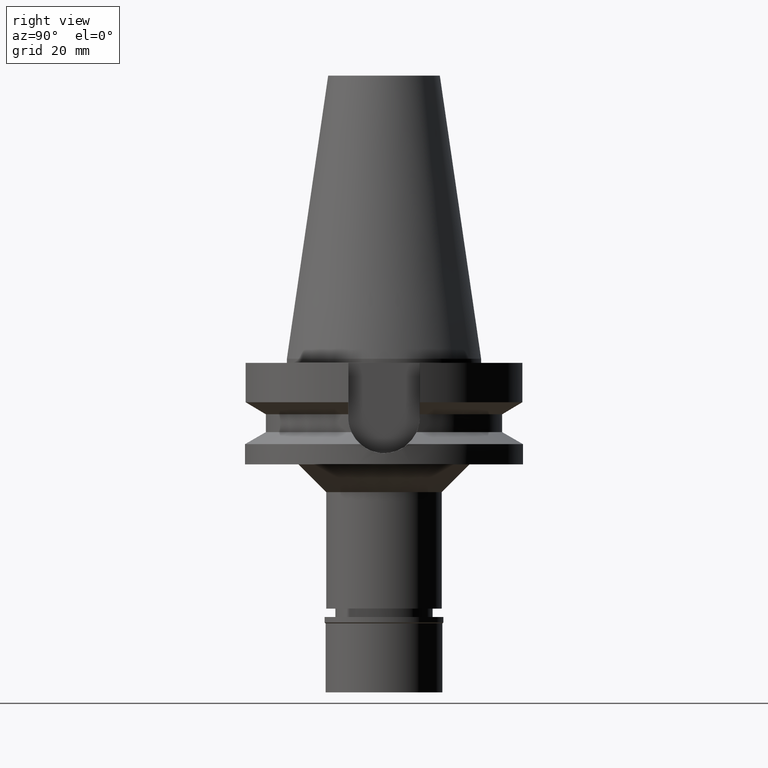
[diagram: clean part render]
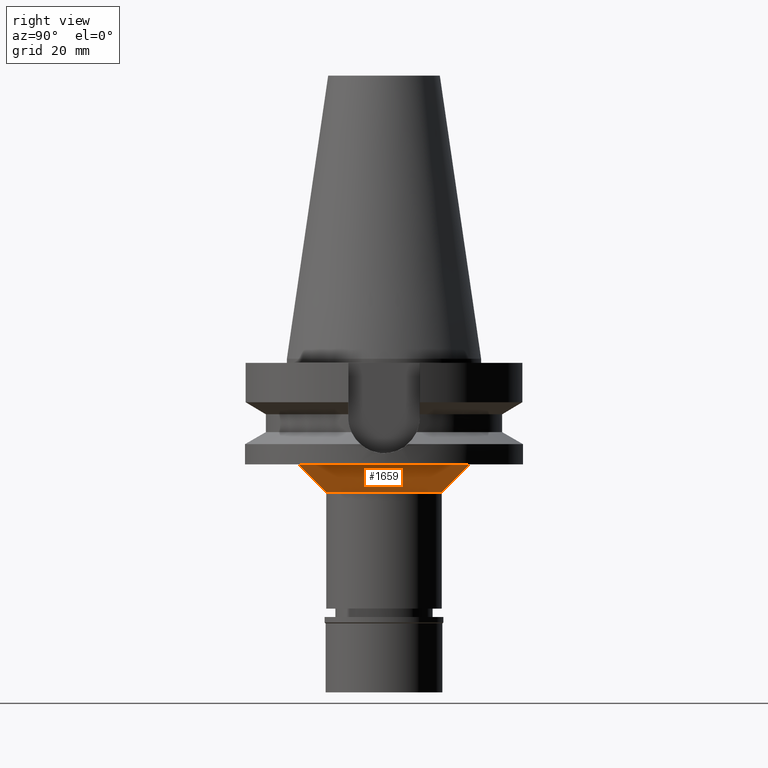
[diagram: same view with one face highlighted and labeled with its STEP entity id]
A machine part, right view. The second image highlights one B-rep face of the part: STEP entity #1659.
In plain terms, the highlighted conical surface has half-angle 45 deg.
Its self-contained STEP definition (entity closure, byte-faithful):
#47 = FACE_OUTER_BOUND ( 'NONE', #2394, .T. ) ;
#61 = DIRECTION ( 'NONE',  ( 0.0000000000000000000, 0.0000000000000000000, 1.000000000000000000 ) ) ;
#82 = DIRECTION ( 'NONE',  ( 0.0000000000000000000, 0.0000000000000000000, -1.000000000000000000 ) ) ;
#139 = ORIENTED_EDGE ( 'NONE', *, *, #1881, .T. ) ;
#142 = CARTESIAN_POINT ( 'NONE',  ( 0.0000000000000000000, -20.75000000000000000, -48.00000000000000000 ) ) ;
#273 = DIRECTION ( 'NONE',  ( 0.0000000000000000000, 1.000000000000000000, 0.0000000000000000000 ) ) ;
#328 = DIRECTION ( 'NONE',  ( 0.0000000000000000000, -0.7071067811865474617, -0.7071067811865474617 ) ) ;
#537 = DIRECTION ( 'NONE',  ( 0.0000000000000000000, 0.7071067811865474617, -0.7071067811865474617 ) ) ;
#566 = CIRCLE ( 'NONE', #2202, 20.75000000000000000 ) ;
#793 = DIRECTION ( 'NONE',  ( 0.0000000000000000000, 1.000000000000000000, 0.0000000000000000000 ) ) ;
#836 = VERTEX_POINT ( 'NONE', #1699 ) ;
#953 = CARTESIAN_POINT ( 'NONE',  ( 0.0000000000000000000, 20.75000000000000000, -48.00000000000000000 ) ) ;
#956 = EDGE_CURVE ( 'NONE', #836, #2733, #2934, .T. ) ;
#1094 = CARTESIAN_POINT ( 'NONE',  ( 0.0000000000000000000, 0.0000000000000000000, -38.00000000000000000 ) ) ;
#1192 = VECTOR ( 'NONE', #328, 1000.000000000000114 ) ;
#1244 = CARTESIAN_POINT ( 'NONE',  ( 0.0000000000000000000, -30.75000000000000000, -38.00000000000000000 ) ) ;
#1276 = LINE ( 'NONE', #2011, #2390 ) ;
#1630 = EDGE_CURVE ( 'NONE', #2733, #2419, #566, .T. ) ;
#1631 = VERTEX_POINT ( 'NONE', #1244 ) ;
#1659 = ADVANCED_FACE ( 'NONE', ( #47 ), #2106, .T. ) ;
#1699 = CARTESIAN_POINT ( 'NONE',  ( 0.0000000000000000000, 30.75000000000000000, -38.00000000000000000 ) ) ;
#1708 = ORIENTED_EDGE ( 'NONE', *, *, #956, .F. ) ;
#1795 = AXIS2_PLACEMENT_3D ( 'NONE', #1986, #61, #793 ) ;
#1840 = AXIS2_PLACEMENT_3D ( 'NONE', #1094, #82, #2548 ) ;
#1881 = EDGE_CURVE ( 'NONE', #836, #1631, #1892, .T. ) ;
#1892 = CIRCLE ( 'NONE', #1840, 30.75000000000000000 ) ;
#1986 = CARTESIAN_POINT ( 'NONE',  ( 0.0000000000000000000, 0.0000000000000000000, -43.00000000000000000 ) ) ;
#2011 = CARTESIAN_POINT ( 'NONE',  ( 0.0000000000000000000, -30.75000000000000000, -38.00000000000000000 ) ) ;
#2106 = CONICAL_SURFACE ( 'NONE', #1795, 25.75000000000000000, 0.7853981633972997312 ) ;
#2202 = AXIS2_PLACEMENT_3D ( 'NONE', #2966, #2440, #273 ) ;
#2251 = ORIENTED_EDGE ( 'NONE', *, *, #2259, .T. ) ;
#2259 = EDGE_CURVE ( 'NONE', #1631, #2419, #1276, .T. ) ;
#2390 = VECTOR ( 'NONE', #537, 1000.000000000000114 ) ;
#2394 = EDGE_LOOP ( 'NONE', ( #139, #2251, #2660, #1708 ) ) ;
#2419 = VERTEX_POINT ( 'NONE', #142 ) ;
#2440 = DIRECTION ( 'NONE',  ( 0.0000000000000000000, 0.0000000000000000000, -1.000000000000000000 ) ) ;
#2548 = DIRECTION ( 'NONE',  ( 0.0000000000000000000, 1.000000000000000000, 0.0000000000000000000 ) ) ;
#2660 = ORIENTED_EDGE ( 'NONE', *, *, #1630, .F. ) ;
#2733 = VERTEX_POINT ( 'NONE', #953 ) ;
#2934 = LINE ( 'NONE', #2947, #1192 ) ;
#2947 = CARTESIAN_POINT ( 'NONE',  ( 0.0000000000000000000, 30.75000000000000000, -38.00000000000000000 ) ) ;
#2966 = CARTESIAN_POINT ( 'NONE',  ( 0.0000000000000000000, 0.0000000000000000000, -48.00000000000000000 ) ) ;